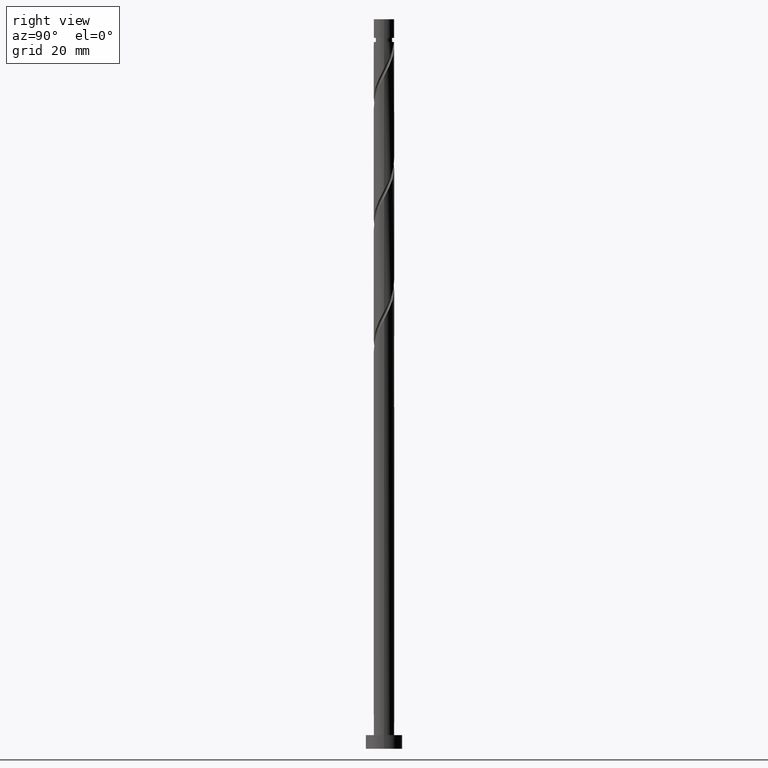
[diagram: clean part render]
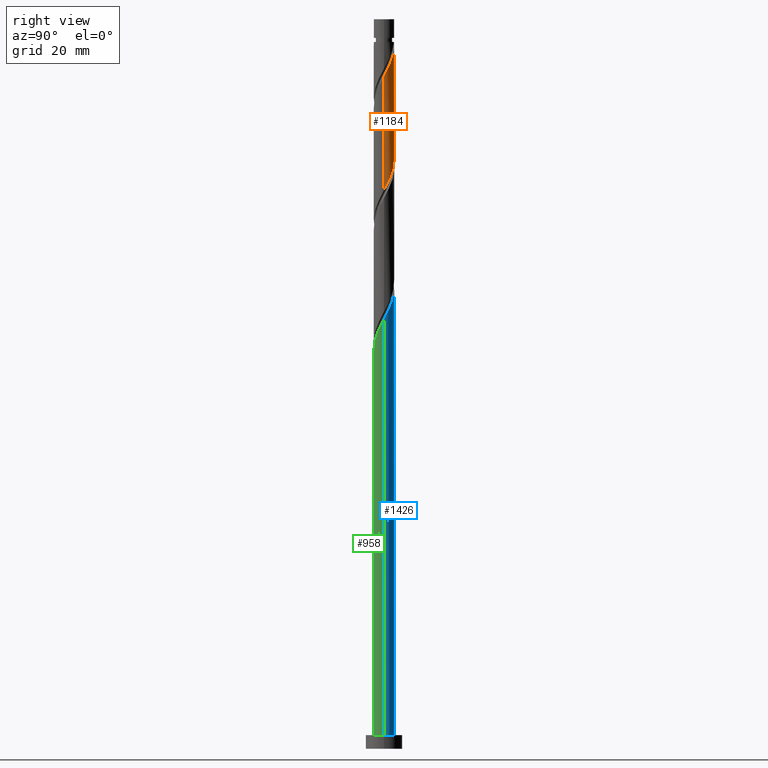
[diagram: same view with three faces highlighted in distinct colors, each labeled with its STEP entity id]
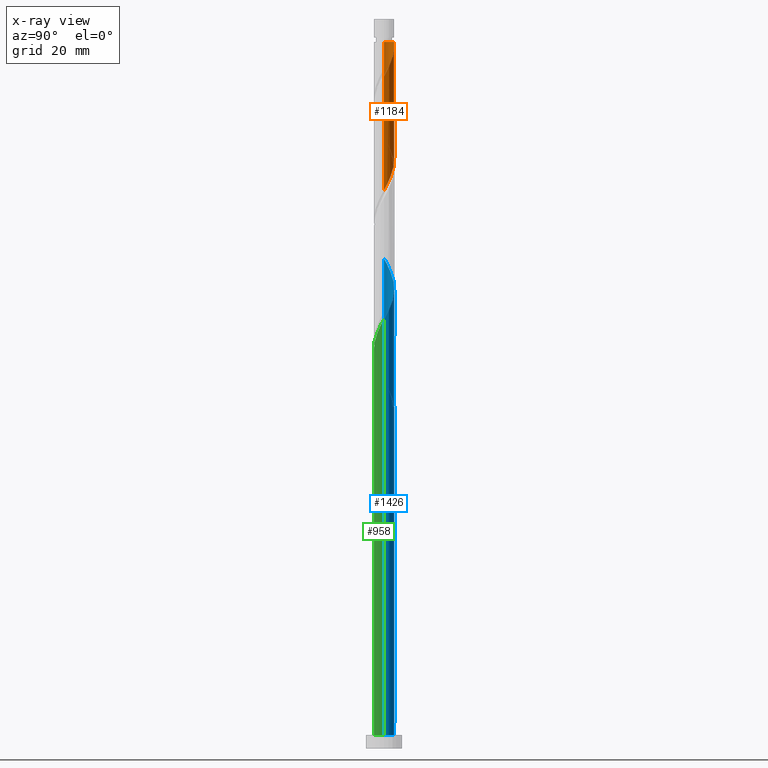
[diagram: x-ray of the same camera — body ghosted, the three highlighted faces saturated]
A machine part, right view with three faces highlighted in distinct colors.
The next image is the same camera in x-ray (body ghosted, the three faces saturated) — at least one of them is partly hidden behind the body in this view.
Their STEP definitions:

[orange] entity #1184 — the highlighted cylindrical surface (edge-blend (fillet) strip) has radius 2.25 mm, axis along (-0, -0, -1).
#33 = CARTESIAN_POINT ( 'NONE',  ( 0.1916127332030282959, 2.241826166426486910, 153.7974561491446366 ) ) ;
#46 = CARTESIAN_POINT ( 'NONE',  ( -0.1307132084390629223, 2.269375918314132434, 154.4035167552052883 ) ) ;
#47 = CARTESIAN_POINT ( 'NONE',  ( -2.249999999999998668, 0.06474493467861150431, 135.7369338358485606 ) ) ;
#56 = CARTESIAN_POINT ( 'NONE',  ( 1.050827842467677575, 1.989537847213448618, 127.1307894824780647 ) ) ;
#65 = CYLINDRICAL_SURFACE ( 'NONE', #1033, 2.250000000000000000 ) ;
#80 = AXIS2_PLACEMENT_3D ( 'NONE', #606, #1105, #1547 ) ;
#86 = CARTESIAN_POINT ( 'NONE',  ( -1.373217619952648239, 1.782350517785876720, 131.9792743309628804 ) ) ;
#96 = CARTESIAN_POINT ( 'NONE',  ( -0.5139386748451184594, 2.214276414538838278, 130.1610925127810958 ) ) ;
#105 = CARTESIAN_POINT ( 'NONE',  ( 0.7647754849568960678, 2.140624081685869928, 127.7368500885386311 ) ) ;
#115 = CARTESIAN_POINT ( 'NONE',  ( 2.250000000000003109, 1.720034380902071385E-15, 147.4934562152983801 ) ) ;
#151 = ORIENTED_EDGE ( 'NONE', *, *, #1161, .F. ) ;
#153 = CARTESIAN_POINT ( 'NONE',  ( 1.629480936700962834, 1.584911631105248686, 150.7671531188416338 ) ) ;
#199 = CARTESIAN_POINT ( 'NONE',  ( 2.249999999999999112, 0.2576900866165303672, 123.0116584602047709 ) ) ;
#201 = EDGE_CURVE ( 'NONE', #1277, #380, #1053, .T. ) ;
#210 = CARTESIAN_POINT ( 'NONE',  ( -2.249999999999992450, 0.000000000000000000, 155.0095773612659116 ) ) ;
#243 = CARTESIAN_POINT ( 'NONE',  ( -1.116954303204337640, 1.979789404466506308, 131.3732137249022855 ) ) ;
#294 = CARTESIAN_POINT ( 'NONE',  ( 2.191738273361774958, 0.5087075201735702379, 123.4944258461144102 ) ) ;
#307 = DIRECTION ( 'NONE',  ( -0.000000000000000000, -0.000000000000000000, -1.000000000000000000 ) ) ;
#316 = CARTESIAN_POINT ( 'NONE',  ( 2.118597173968805869, 0.8238319100010139673, 124.1004864521749909 ) ) ;
#343 = ORIENTED_EDGE ( 'NONE', *, *, #980, .T. ) ;
#349 = EDGE_CURVE ( 'NONE', #1119, #1326, #1545, .T. ) ;
#380 = VERTEX_POINT ( 'NONE', #1336 ) ;
#421 = CARTESIAN_POINT ( 'NONE',  ( 2.009996715602345496, 1.061633743224249082, 149.5550319067204157 ) ) ;
#434 = VECTOR ( 'NONE', #1430, 1000.000000000000000 ) ;
#443 = CARTESIAN_POINT ( 'NONE',  ( -2.227674514516368554, 0.4523486032462000761, 135.0095773612659116 ) ) ;
#471 = CARTESIAN_POINT ( 'NONE',  ( -1.819738826151650279, 1.323272687164748218, 133.1913955430840986 ) ) ;
#475 = ORIENTED_EDGE ( 'NONE', *, *, #906, .T. ) ;
#501 = CARTESIAN_POINT ( 'NONE',  ( 2.118835615059359689, 0.7569911732352244682, 148.9489713006598777 ) ) ;
#514 = LINE ( 'NONE', #681, #434 ) ;
#553 = ORIENTED_EDGE ( 'NONE', *, *, #349, .F. ) ;
#580 = DIRECTION ( 'NONE',  ( -0.000000000000000000, -0.000000000000000000, -1.000000000000000000 ) ) ;
#602 =( BOUNDED_CURVE ( )  B_SPLINE_CURVE ( 2, ( #1198, #47, #1581, #443, #1345, #1613, #471, #974, #86, #243, #1242, #96, #1248, #1212, #1381, #105, #56, #719, #1342, #954, #947, #316, #294, #199, #826 ),
 .UNSPECIFIED., .F., .T. ) 
 B_SPLINE_CURVE_WITH_KNOTS ( ( 3, 2, 2, 2, 2, 2, 2, 2, 2, 2, 2, 2, 3 ),
 ( 0.4295252162417517172, 0.4318181818181818232, 0.4431818181818181768, 0.4545454545454545303, 0.4659090909090908839, 0.4772727272727272929, 0.4886363636363636465, 0.5000000000000000000, 0.5113636363636363535, 0.5227272727272727071, 0.5340909090909090606, 0.5454545454545454142, 0.5545252162417511066 ),
 .UNSPECIFIED. ) 
 CURVE ( )  GEOMETRIC_REPRESENTATION_ITEM ( )  RATIONAL_B_SPLINE_CURVE ( ( 0.9061101570135632333, 0.9072237824201453416, 0.9090909090909224943, 0.8998376744372248437, 0.9090909090909224943, 0.8998376744372248437, 0.9090909090909224943, 0.8998376744372248437, 0.9090909090909224943, 0.8998376744372248437, 0.9090909090909224943, 0.8998376744372248437, 0.9090909090909224943, 0.8998376744372248437, 0.9090909090909224943, 0.8998376744372248437, 0.9090909090909224943, 0.8998376744372248437, 0.9090909090909224943, 0.8998376744372248437, 0.9090909090909224943, 0.8998376744372248437, 0.9090909090909224943, 0.9017048011080024406, 0.9061101570135627892 ) ) 
 REPRESENTATION_ITEM ( '' )  );
#606 = CARTESIAN_POINT ( 'NONE',  ( 0.000000000000000000, 0.000000000000000000, 155.0095773612659116 ) ) ;
#629 = CARTESIAN_POINT ( 'NONE',  ( 2.250000000000003109, 0.06474493467859572526, 147.6155542200165769 ) ) ;
#666 = CARTESIAN_POINT ( 'NONE',  ( 0.8154464890247291597, 2.097032909502675846, 152.5853349370235605 ) ) ;
#681 = CARTESIAN_POINT ( 'NONE',  ( 2.250000000000000000, 2.755455298081544285E-16, 160.0000000000000000 ) ) ;
#689 = CARTESIAN_POINT ( 'NONE',  ( 1.116954303204339416, 1.979789404466509417, 151.9792743309629088 ) ) ;
#699 = CARTESIAN_POINT ( 'NONE',  ( 1.819738826151654054, 1.323272687164749328, 150.1610925127810674 ) ) ;
#705 = VERTEX_POINT ( 'NONE', #733 ) ;
#719 = CARTESIAN_POINT ( 'NONE',  ( 1.336880199978459194, 1.838451612741027974, 126.5247288764174414 ) ) ;
#733 = CARTESIAN_POINT ( 'NONE',  ( 2.250000000000000000, 3.380241478990181135E-15, 122.5256985072334999 ) ) ;
#739 = EDGE_LOOP ( 'NONE', ( #1334, #343, #151, #553, #475 ) ) ;
#785 = CARTESIAN_POINT ( 'NONE',  ( -2.250000000000000000, 1.189067245927961296E-14, 135.8590318405667858 ) ) ;
#810 = CARTESIAN_POINT ( 'NONE',  ( 0.000000000000000000, 0.000000000000000000, 160.0000000000000000 ) ) ;
#811 = CARTESIAN_POINT ( 'NONE',  ( -0.4477443466979481590, 2.205000000000004512, 155.0095773612658263 ) ) ;
#826 = CARTESIAN_POINT ( 'NONE',  ( 2.250000000000000000, 3.380241478990181135E-15, 122.5256985072334999 ) ) ;
#835 = VECTOR ( 'NONE', #307, 1000.000000000000000 ) ;
#906 = EDGE_CURVE ( 'NONE', #1119, #380, #1348, .T. ) ;
#947 = CARTESIAN_POINT ( 'NONE',  ( 1.959638002949630309, 1.105585318912829962, 124.7065470582355999 ) ) ;
#954 = CARTESIAN_POINT ( 'NONE',  ( 1.800678831930455193, 1.387338727824644513, 125.3126076642962232 ) ) ;
#974 = CARTESIAN_POINT ( 'NONE',  ( -1.629480936700959059, 1.584911631105248020, 132.5853349370234753 ) ) ;
#980 = EDGE_CURVE ( 'NONE', #1277, #705, #514, .T. ) ;
#1033 = AXIS2_PLACEMENT_3D ( 'NONE', #810, #580, #1081 ) ;
#1053 =( BOUNDED_CURVE ( )  B_SPLINE_CURVE ( 2, ( #115, #629, #1129, #1644, #501, #421, #699, #153, #1197, #689, #666, #1169, #33, #46, #811 ),
 .UNSPECIFIED., .F., .T. ) 
 B_SPLINE_CURVE_WITH_KNOTS ( ( 3, 2, 2, 2, 2, 2, 2, 3 ),
 ( 0.6795252162417512176, 0.6818181818181818787, 0.6931818181818181213, 0.7045454545454545858, 0.7159090909090908283, 0.7272727272727272929, 0.7386363636363636465, 0.7500000000000000000 ),
 .UNSPECIFIED. ) 
 CURVE ( )  GEOMETRIC_REPRESENTATION_ITEM ( )  RATIONAL_B_SPLINE_CURVE ( ( 0.9061101570135687844, 0.9072237824201510037, 0.9090909090909286006, 0.8998376744372309499, 0.9090909090909286006, 0.8998376744372309499, 0.9090909090909286006, 0.8998376744372309499, 0.9090909090909286006, 0.8998376744372309499, 0.9090909090909286006, 0.8998376744372309499, 0.9090909090909286006, 0.8998376744372309499, 0.9090909090909286006 ) ) 
 REPRESENTATION_ITEM ( '' )  );
#1081 = DIRECTION ( 'NONE',  ( -1.000000000000000000, 0.000000000000000000, 0.000000000000000000 ) ) ;
#1105 = DIRECTION ( 'NONE',  ( -0.000000000000000000, -0.000000000000000000, -1.000000000000000000 ) ) ;
#1119 = VERTEX_POINT ( 'NONE', #210 ) ;
#1129 = CARTESIAN_POINT ( 'NONE',  ( 2.246276943635560741, 0.1293827364500363397, 147.7368500885386879 ) ) ;
#1161 = EDGE_CURVE ( 'NONE', #1326, #705, #602, .T. ) ;
#1169 = CARTESIAN_POINT ( 'NONE',  ( 0.5139386748451196807, 2.214276414538841831, 153.1913955430841270 ) ) ;
#1184 = ADVANCED_FACE ( 'NONE', ( #1217 ), #65, .T. ) ;
#1188 = CARTESIAN_POINT ( 'NONE',  ( -2.250000000000000000, 0.000000000000000000, 160.0000000000000000 ) ) ;
#1197 = CARTESIAN_POINT ( 'NONE',  ( 1.373217619952650237, 1.782350517785879829, 151.3732137249022855 ) ) ;
#1198 = CARTESIAN_POINT ( 'NONE',  ( -2.250000000000000000, 1.189067245927961296E-14, 135.8590318405667858 ) ) ;
#1212 = CARTESIAN_POINT ( 'NONE',  ( 0.1307132084390634219, 2.269375918314128882, 128.9489713006598492 ) ) ;
#1217 = FACE_OUTER_BOUND ( 'NONE', #739, .T. ) ;
#1242 = CARTESIAN_POINT ( 'NONE',  ( -0.8154464890247279385, 2.097032909502672737, 130.7671531188416907 ) ) ;
#1248 = CARTESIAN_POINT ( 'NONE',  ( -0.1916127332030274633, 2.241826166426483358, 129.5550319067204725 ) ) ;
#1277 = VERTEX_POINT ( 'NONE', #1435 ) ;
#1326 = VERTEX_POINT ( 'NONE', #785 ) ;
#1334 = ORIENTED_EDGE ( 'NONE', *, *, #201, .F. ) ;
#1336 = CARTESIAN_POINT ( 'NONE',  ( -0.4477443466979481590, 2.205000000000004068, 155.0095773612658263 ) ) ;
#1342 = CARTESIAN_POINT ( 'NONE',  ( 1.568779515954456860, 1.612895170282836466, 125.9186682703568323 ) ) ;
#1345 = CARTESIAN_POINT ( 'NONE',  ( -2.118835615059355693, 0.7569911732352241351, 134.4035167552053451 ) ) ;
#1348 = CIRCLE ( 'NONE', #80, 2.249999999999992450 ) ;
#1381 = CARTESIAN_POINT ( 'NONE',  ( 0.4477443466979801334, 2.204999999999999183, 128.3429106945992544 ) ) ;
#1430 = DIRECTION ( 'NONE',  ( -0.000000000000000000, -0.000000000000000000, -1.000000000000000000 ) ) ;
#1435 = CARTESIAN_POINT ( 'NONE',  ( 2.250000000000003109, 1.720034380902071385E-15, 147.4934562152983801 ) ) ;
#1545 = LINE ( 'NONE', #1188, #835 ) ;
#1547 = DIRECTION ( 'NONE',  ( -1.000000000000000000, 0.000000000000000000, 0.000000000000000000 ) ) ;
#1581 = CARTESIAN_POINT ( 'NONE',  ( -2.246276943635557188, 0.1293827364500370891, 135.6156379673265633 ) ) ;
#1613 = CARTESIAN_POINT ( 'NONE',  ( -2.009996715602341943, 1.061633743224248638, 133.7974561491446650 ) ) ;
#1644 = CARTESIAN_POINT ( 'NONE',  ( 2.227674514516372550, 0.4523486032461998541, 148.3429106945992544 ) ) ;

[blue] entity #1426 — the highlighted cylindrical surface (edge-blend (fillet) strip) has radius 2.25 mm, axis along (-0, -0, -1).
#9 = EDGE_CURVE ( 'NONE', #1291, #1311, #374, .T. ) ;
#11 = CARTESIAN_POINT ( 'NONE',  ( -1.629480936700959059, 1.584911631105248020, 79.25200160369014668 ) ) ;
#14 = CARTESIAN_POINT ( 'NONE',  ( 2.118835615059359689, 0.7569911732352244682, 95.61563796732653486 ) ) ;
#20 = CARTESIAN_POINT ( 'NONE',  ( 0.1307132084390634219, 2.269375918314128882, 75.61563796732650644 ) ) ;
#51 = DIRECTION ( 'NONE',  ( -1.000000000000000000, 0.000000000000000000, 0.000000000000000000 ) ) ;
#64 = CARTESIAN_POINT ( 'NONE',  ( -1.568779515954459081, 1.612895170282839130, 104.1004864521750193 ) ) ;
#85 = ORIENTED_EDGE ( 'NONE', *, *, #1290, .T. ) ;
#117 = CARTESIAN_POINT ( 'NONE',  ( -1.373217619952648239, 1.782350517785876720, 78.64594099762953761 ) ) ;
#146 = CARTESIAN_POINT ( 'NONE',  ( -2.118835615059355693, 0.7569911732352241351, 81.07018342187197391 ) ) ;
#181 = CARTESIAN_POINT ( 'NONE',  ( 0.000000000000000000, 0.000000000000000000, 160.0000000000000000 ) ) ;
#185 = CARTESIAN_POINT ( 'NONE',  ( -2.249999999999999556, 8.742261701193629257E-15, 82.52569850723344302 ) ) ;
#198 = CARTESIAN_POINT ( 'NONE',  ( -0.1307132084390629223, 2.269375918314132434, 101.0701834218719881 ) ) ;
#205 = DIRECTION ( 'NONE',  ( -0.000000000000000000, -0.000000000000000000, -1.000000000000000000 ) ) ;
#214 = AXIS2_PLACEMENT_3D ( 'NONE', #181, #702, #51 ) ;
#224 = LINE ( 'NONE', #1630, #296 ) ;
#236 = CARTESIAN_POINT ( 'NONE',  ( -0.7647754849568966229, 2.140624081685873925, 75.61563796732652065 ) ) ;
#273 = CARTESIAN_POINT ( 'NONE',  ( 2.250000000000003109, 1.720034380902071385E-15, 94.16012288196502311 ) ) ;
#277 = CARTESIAN_POINT ( 'NONE',  ( -0.8154464890247279385, 2.097032909502672737, 77.43381978550834788 ) ) ;
#282 = CARTESIAN_POINT ( 'NONE',  ( 2.227674514516372550, 0.4523486032461998541, 95.00957736126588316 ) ) ;
#287 = ORIENTED_EDGE ( 'NONE', *, *, #1497, .F. ) ;
#292 = VERTEX_POINT ( 'NONE', #1555 ) ;
#296 = VECTOR ( 'NONE', #1310, 1000.000000000000000 ) ;
#310 = CYLINDRICAL_SURFACE ( 'NONE', #214, 2.250000000000000000 ) ;
#326 = CARTESIAN_POINT ( 'NONE',  ( -1.050827842467678686, 1.989537847213452171, 102.8883652400537727 ) ) ;
#340 = LINE ( 'NONE', #1597, #352 ) ;
#345 = CARTESIAN_POINT ( 'NONE',  ( -2.250000000000005773, 0.2576900866165175996, 80.34082959566040927 ) ) ;
#352 = VECTOR ( 'NONE', #963, 1000.000000000000000 ) ;
#374 =( BOUNDED_CURVE ( )  B_SPLINE_CURVE ( 2, ( #273, #1177, #796, #282, #14, #407, #924, #918, #1423, #803, #676, #539, #1350, #198, #1216, #1465, #326, #718, #64, #579, #1080, #450, #832, #953, #1018 ),
 .UNSPECIFIED., .F., .T. ) 
 B_SPLINE_CURVE_WITH_KNOTS ( ( 3, 2, 2, 2, 2, 2, 2, 2, 2, 2, 2, 2, 3 ),
 ( 0.1795252162417515229, 0.1818181818181817677, 0.1931818181818182323, 0.2045454545454545858, 0.2159090909090909394, 0.2272727272727272929, 0.2386363636363636465, 0.2500000000000000000, 0.2613636363636363535, 0.2727272727272727071, 0.2840909090909090606, 0.2954545454545454142, 0.3045252162417512731 ),
 .UNSPECIFIED. ) 
 CURVE ( )  GEOMETRIC_REPRESENTATION_ITEM ( )  RATIONAL_B_SPLINE_CURVE ( ( 0.9061101570135692285, 0.9072237824201513368, 0.9090909090909286006, 0.8998376744372309499, 0.9090909090909286006, 0.8998376744372309499, 0.9090909090909286006, 0.8998376744372309499, 0.9090909090909286006, 0.8998376744372309499, 0.9090909090909286006, 0.8998376744372309499, 0.9090909090909286006, 0.8998376744372309499, 0.9090909090909286006, 0.8998376744372309499, 0.9090909090909286006, 0.8998376744372309499, 0.9090909090909286006, 0.8998376744372309499, 0.9090909090909286006, 0.8998376744372309499, 0.9090909090909286006, 0.9017048011080084358, 0.9061101570135690064 ) ) 
 REPRESENTATION_ITEM ( '' )  );
#381 = CARTESIAN_POINT ( 'NONE',  ( 2.250000000000000000, 2.755455298081544285E-16, 3.000000000000000000 ) ) ;
#393 = CARTESIAN_POINT ( 'NONE',  ( -2.246276943635557188, 0.1293827364500370891, 82.28230463399320627 ) ) ;
#407 = CARTESIAN_POINT ( 'NONE',  ( 2.009996715602345496, 1.061633743224249082, 96.22169857338714394 ) ) ;
#418 =( BOUNDED_CURVE ( )  B_SPLINE_CURVE ( 2, ( #729, #236, #1225, #1106, #755, #1374, #1483, #1114, #1243, #345, #485 ),
 .UNSPECIFIED., .F., .T. ) 
 B_SPLINE_CURVE_WITH_KNOTS ( ( 3, 2, 2, 2, 2, 3 ),
 ( 0.000000000000000000, 0.01136363636363635354, 0.02272727272727270709, 0.03409090909090906063, 0.04545454545454541417, 0.05452521624175162701 ),
 .UNSPECIFIED. ) 
 CURVE ( )  GEOMETRIC_REPRESENTATION_ITEM ( )  RATIONAL_B_SPLINE_CURVE ( ( 0.9090909090909286006, 0.8998376744372309499, 0.9090909090909286006, 0.8998376744372309499, 0.9090909090909286006, 0.8998376744372309499, 0.9090909090909286006, 0.8998376744372309499, 0.9090909090909286006, 0.9017048011080082137, 0.9061101570135693395 ) ) 
 REPRESENTATION_ITEM ( '' )  );
#431 = CARTESIAN_POINT ( 'NONE',  ( 2.250000000000003109, 1.720034380902071385E-15, 94.16012288196502311 ) ) ;
#450 = CARTESIAN_POINT ( 'NONE',  ( -2.118597173968808978, 0.8238319100010174090, 105.9186682703568323 ) ) ;
#485 = CARTESIAN_POINT ( 'NONE',  ( -2.250000000000003109, -1.809775305123048942E-15, 80.82678954863172294 ) ) ;
#539 = CARTESIAN_POINT ( 'NONE',  ( 0.5139386748451196807, 2.214276414538841831, 99.85806220975076997 ) ) ;
#550 = DIRECTION ( 'NONE',  ( 0.000000000000000000, -0.000000000000000000, -1.000000000000000000 ) ) ;
#579 = CARTESIAN_POINT ( 'NONE',  ( -1.800678831930457857, 1.387338727824646289, 104.7065470582356284 ) ) ;
#593 = DIRECTION ( 'NONE',  ( 0.000000000000000000, 0.000000000000000000, 1.000000000000000000 ) ) ;
#596 = EDGE_CURVE ( 'NONE', #1633, #1580, #1410, .T. ) ;
#605 = VERTEX_POINT ( 'NONE', #1511 ) ;
#661 = CARTESIAN_POINT ( 'NONE',  ( -0.5139386748451184594, 2.214276414538838278, 76.82775917944772459 ) ) ;
#664 = EDGE_LOOP ( 'NONE', ( #1148, #1102, #862, #667, #1433, #85, #287, #1185 ) ) ;
#667 = ORIENTED_EDGE ( 'NONE', *, *, #1235, .F. ) ;
#676 = CARTESIAN_POINT ( 'NONE',  ( 0.8154464890247291597, 2.097032909502675846, 99.25200160369018931 ) ) ;
#684 = EDGE_CURVE ( 'NONE', #292, #786, #418, .T. ) ;
#702 = DIRECTION ( 'NONE',  ( -0.000000000000000000, -0.000000000000000000, -1.000000000000000000 ) ) ;
#718 = CARTESIAN_POINT ( 'NONE',  ( -1.336880199978460970, 1.838451612741030861, 103.4944258461144102 ) ) ;
#729 = CARTESIAN_POINT ( 'NONE',  ( -0.4477443466979794118, 2.205000000000003180, 75.00957736126591158 ) ) ;
#755 = CARTESIAN_POINT ( 'NONE',  ( -1.568779515954459081, 1.612895170282839130, 77.43381978550830524 ) ) ;
#779 =( BOUNDED_CURVE ( )  B_SPLINE_CURVE ( 2, ( #185, #1306, #393, #1005, #146, #902, #883, #11, #117, #792, #277, #661, #1297, #20, #1559 ),
 .UNSPECIFIED., .F., .T. ) 
 B_SPLINE_CURVE_WITH_KNOTS ( ( 3, 2, 2, 2, 2, 2, 2, 3 ),
 ( 0.9295252162417516617, 0.9318181818181817677, 0.9431818181818182323, 0.9545454545454545858, 0.9659090909090909394, 0.9772727272727272929, 0.9886363636363636465, 1.000000000000000000 ),
 .UNSPECIFIED. ) 
 CURVE ( )  GEOMETRIC_REPRESENTATION_ITEM ( )  RATIONAL_B_SPLINE_CURVE ( ( 0.9061101570135632333, 0.9072237824201453416, 0.9090909090909224943, 0.8998376744372248437, 0.9090909090909224943, 0.8998376744372248437, 0.9090909090909224943, 0.8998376744372248437, 0.9090909090909224943, 0.8998376744372248437, 0.9090909090909224943, 0.8998376744372248437, 0.9090909090909224943, 0.8998376744372248437, 0.9090909090909224943 ) ) 
 REPRESENTATION_ITEM ( '' )  );
#786 = VERTEX_POINT ( 'NONE', #893 ) ;
#792 = CARTESIAN_POINT ( 'NONE',  ( -1.116954303204337640, 1.979789404466506308, 78.03988039156894274 ) ) ;
#796 = CARTESIAN_POINT ( 'NONE',  ( 2.246276943635560741, 0.1293827364500363397, 94.40351675520531671 ) ) ;
#803 = CARTESIAN_POINT ( 'NONE',  ( 1.116954303204339416, 1.979789404466509417, 98.64594099762953761 ) ) ;
#832 = CARTESIAN_POINT ( 'NONE',  ( -2.191738273361778067, 0.5087075201735721253, 106.5247288764174272 ) ) ;
#842 = LINE ( 'NONE', #1572, #1003 ) ;
#862 = ORIENTED_EDGE ( 'NONE', *, *, #596, .T. ) ;
#871 = AXIS2_PLACEMENT_3D ( 'NONE', #1324, #550, #1059 ) ;
#883 = CARTESIAN_POINT ( 'NONE',  ( -1.819738826151650279, 1.323272687164748218, 79.85806220975076997 ) ) ;
#893 = CARTESIAN_POINT ( 'NONE',  ( -2.250000000000003109, -1.809775305123048942E-15, 80.82678954863172294 ) ) ;
#902 = CARTESIAN_POINT ( 'NONE',  ( -2.009996715602341943, 1.061633743224248638, 80.46412281581137904 ) ) ;
#918 = CARTESIAN_POINT ( 'NONE',  ( 1.629480936700962834, 1.584911631105248686, 97.43381978550833367 ) ) ;
#924 = CARTESIAN_POINT ( 'NONE',  ( 1.819738826151654054, 1.323272687164749328, 96.82775917944775301 ) ) ;
#935 = CARTESIAN_POINT ( 'NONE',  ( -2.250000000000003109, -1.809775305123048942E-15, 107.4934562152983801 ) ) ;
#953 = CARTESIAN_POINT ( 'NONE',  ( -2.250000000000003109, 0.2576900866165275361, 107.0074962623270522 ) ) ;
#963 = DIRECTION ( 'NONE',  ( -0.000000000000000000, -0.000000000000000000, -1.000000000000000000 ) ) ;
#1003 = VECTOR ( 'NONE', #205, 1000.000000000000000 ) ;
#1005 = CARTESIAN_POINT ( 'NONE',  ( -2.227674514516368554, 0.4523486032462000761, 81.67624402793261140 ) ) ;
#1018 = CARTESIAN_POINT ( 'NONE',  ( -2.250000000000003109, -1.809775305123048942E-15, 107.4934562152983801 ) ) ;
#1059 = DIRECTION ( 'NONE',  ( -1.000000000000000000, 0.000000000000000000, 0.000000000000000000 ) ) ;
#1060 = CARTESIAN_POINT ( 'NONE',  ( -2.249999999999999556, 8.742261701193629257E-15, 82.52569850723344302 ) ) ;
#1080 = CARTESIAN_POINT ( 'NONE',  ( -1.959638002949633639, 1.105585318912831738, 105.3126076642962374 ) ) ;
#1102 = ORIENTED_EDGE ( 'NONE', *, *, #1103, .T. ) ;
#1103 = EDGE_CURVE ( 'NONE', #1291, #1633, #340, .T. ) ;
#1106 = CARTESIAN_POINT ( 'NONE',  ( -1.336880199978460970, 1.838451612741030861, 76.82775917944772459 ) ) ;
#1112 = AXIS2_PLACEMENT_3D ( 'NONE', #1619, #593, #1626 ) ;
#1114 = CARTESIAN_POINT ( 'NONE',  ( -2.118597173968808978, 0.8238319100010174090, 79.25200160369017510 ) ) ;
#1140 = VERTEX_POINT ( 'NONE', #1060 ) ;
#1148 = ORIENTED_EDGE ( 'NONE', *, *, #9, .F. ) ;
#1177 = CARTESIAN_POINT ( 'NONE',  ( 2.250000000000003553, 0.06474493467860686913, 94.28222088668326251 ) ) ;
#1185 = ORIENTED_EDGE ( 'NONE', *, *, #1314, .F. ) ;
#1216 = CARTESIAN_POINT ( 'NONE',  ( -0.4477443466979793563, 2.205000000000003180, 101.6762440279325688 ) ) ;
#1225 = CARTESIAN_POINT ( 'NONE',  ( -1.050827842467678686, 1.989537847213452171, 76.22169857338714394 ) ) ;
#1235 = EDGE_CURVE ( 'NONE', #786, #1580, #842, .T. ) ;
#1243 = CARTESIAN_POINT ( 'NONE',  ( -2.191738273361778067, 0.5087075201735721253, 79.85806220975078418 ) ) ;
#1290 = EDGE_CURVE ( 'NONE', #292, #605, #1603, .T. ) ;
#1291 = VERTEX_POINT ( 'NONE', #431 ) ;
#1297 = CARTESIAN_POINT ( 'NONE',  ( -0.1916127332030274633, 2.241826166426483358, 76.22169857338714394 ) ) ;
#1306 = CARTESIAN_POINT ( 'NONE',  ( -2.249999999999998668, 0.06474493467861150431, 82.40360050251523205 ) ) ;
#1310 = DIRECTION ( 'NONE',  ( -0.000000000000000000, -0.000000000000000000, -1.000000000000000000 ) ) ;
#1311 = VERTEX_POINT ( 'NONE', #935 ) ;
#1314 = EDGE_CURVE ( 'NONE', #1311, #1140, #224, .T. ) ;
#1324 = CARTESIAN_POINT ( 'NONE',  ( 0.000000000000000000, 0.000000000000000000, 75.00957736126591158 ) ) ;
#1350 = CARTESIAN_POINT ( 'NONE',  ( 0.1916127332030282959, 2.241826166426486910, 100.4641228158113790 ) ) ;
#1354 = CARTESIAN_POINT ( 'NONE',  ( -2.250000000000000000, 0.000000000000000000, 3.000000000000000000 ) ) ;
#1374 = CARTESIAN_POINT ( 'NONE',  ( -1.800678831930457857, 1.387338727824646289, 78.03988039156894274 ) ) ;
#1410 = CIRCLE ( 'NONE', #1112, 2.250000000000000000 ) ;
#1423 = CARTESIAN_POINT ( 'NONE',  ( 1.373217619952650237, 1.782350517785879829, 98.03988039156894274 ) ) ;
#1426 = ADVANCED_FACE ( 'NONE', ( #1442 ), #310, .T. ) ;
#1433 = ORIENTED_EDGE ( 'NONE', *, *, #684, .F. ) ;
#1442 = FACE_OUTER_BOUND ( 'NONE', #664, .T. ) ;
#1465 = CARTESIAN_POINT ( 'NONE',  ( -0.7647754849568966229, 2.140624081685873925, 102.2823046339931778 ) ) ;
#1483 = CARTESIAN_POINT ( 'NONE',  ( -1.959638002949633639, 1.105585318912831738, 78.64594099762956603 ) ) ;
#1497 = EDGE_CURVE ( 'NONE', #1140, #605, #779, .T. ) ;
#1511 = CARTESIAN_POINT ( 'NONE',  ( 0.4477443466979800779, 2.204999999999999183, 75.00957736126591158 ) ) ;
#1555 = CARTESIAN_POINT ( 'NONE',  ( -0.4477443466979794118, 2.205000000000003180, 75.00957736126591158 ) ) ;
#1559 = CARTESIAN_POINT ( 'NONE',  ( 0.4477443466979800779, 2.204999999999999183, 75.00957736126591158 ) ) ;
#1572 = CARTESIAN_POINT ( 'NONE',  ( -2.250000000000000000, 0.000000000000000000, 160.0000000000000000 ) ) ;
#1580 = VERTEX_POINT ( 'NONE', #1354 ) ;
#1597 = CARTESIAN_POINT ( 'NONE',  ( 2.250000000000000000, 2.755455298081544285E-16, 160.0000000000000000 ) ) ;
#1603 = CIRCLE ( 'NONE', #871, 2.250000000000000000 ) ;
#1619 = CARTESIAN_POINT ( 'NONE',  ( 0.000000000000000000, 0.000000000000000000, 3.000000000000000000 ) ) ;
#1626 = DIRECTION ( 'NONE',  ( 1.000000000000000000, 0.000000000000000000, 0.000000000000000000 ) ) ;
#1630 = CARTESIAN_POINT ( 'NONE',  ( -2.250000000000000000, 0.000000000000000000, 160.0000000000000000 ) ) ;
#1633 = VERTEX_POINT ( 'NONE', #381 ) ;

[green] entity #958 — the highlighted cylindrical surface (edge-blend (fillet) strip) has radius 2.25 mm, axis along (-0, -0, -1).
#24 = CARTESIAN_POINT ( 'NONE',  ( 0.7647754849568961788, -2.140624081685874369, 88.94897130065986346 ) ) ;
#95 = EDGE_CURVE ( 'NONE', #1580, #1633, #853, .T. ) ;
#155 = DIRECTION ( 'NONE',  ( -0.000000000000000000, -0.000000000000000000, -1.000000000000000000 ) ) ;
#162 = CARTESIAN_POINT ( 'NONE',  ( 1.050827842467678241, -1.989537847213453059, 89.55503190672047253 ) ) ;
#164 = DIRECTION ( 'NONE',  ( -1.000000000000000000, 0.000000000000000000, 0.000000000000000000 ) ) ;
#205 = DIRECTION ( 'NONE',  ( -0.000000000000000000, -0.000000000000000000, -1.000000000000000000 ) ) ;
#274 = CARTESIAN_POINT ( 'NONE',  ( -2.118835615059359689, -0.7569911732352245792, 82.28230463399319206 ) ) ;
#285 = CARTESIAN_POINT ( 'NONE',  ( 0.4477443466979796338, -2.205000000000003180, 88.34291069459926860 ) ) ;
#295 = CARTESIAN_POINT ( 'NONE',  ( 2.250000000000003109, 1.720034380902071385E-15, 94.16012288196502311 ) ) ;
#317 = CARTESIAN_POINT ( 'NONE',  ( 1.336880199978460970, -1.838451612741030861, 90.16109251278109582 ) ) ;
#325 = EDGE_CURVE ( 'NONE', #786, #1291, #1029, .T. ) ;
#340 = LINE ( 'NONE', #1597, #352 ) ;
#352 = VECTOR ( 'NONE', #963, 1000.000000000000000 ) ;
#381 = CARTESIAN_POINT ( 'NONE',  ( 2.250000000000000000, 2.755455298081544285E-16, 3.000000000000000000 ) ) ;
#383 = CARTESIAN_POINT ( 'NONE',  ( 0.000000000000000000, 0.000000000000000000, 160.0000000000000000 ) ) ;
#408 = CARTESIAN_POINT ( 'NONE',  ( -1.629480936700961724, -1.584911631105249796, 84.10048645217501928 ) ) ;
#409 = FACE_OUTER_BOUND ( 'NONE', #1624, .T. ) ;
#431 = CARTESIAN_POINT ( 'NONE',  ( 2.250000000000003109, 1.720034380902071385E-15, 94.16012288196502311 ) ) ;
#432 = CARTESIAN_POINT ( 'NONE',  ( 1.800678831930457635, -1.387338727824646956, 91.37321372490228555 ) ) ;
#442 = CARTESIAN_POINT ( 'NONE',  ( -0.8154464890247302700, -2.097032909502675402, 85.91866827035681808 ) ) ;
#551 = CARTESIAN_POINT ( 'NONE',  ( 0.1307132084390632276, -2.269375918314132434, 87.73685008853865952 ) ) ;
#562 = CARTESIAN_POINT ( 'NONE',  ( -2.250000000000003109, -1.809775305123048942E-15, 80.82678954863172294 ) ) ;
#572 = CARTESIAN_POINT ( 'NONE',  ( 1.959638002949632751, -1.105585318912832182, 91.97927433096290883 ) ) ;
#614 = AXIS2_PLACEMENT_3D ( 'NONE', #1121, #1160, #1001 ) ;
#627 = ORIENTED_EDGE ( 'NONE', *, *, #325, .F. ) ;
#786 = VERTEX_POINT ( 'NONE', #893 ) ;
#804 = CYLINDRICAL_SURFACE ( 'NONE', #933, 2.250000000000000000 ) ;
#842 = LINE ( 'NONE', #1572, #1003 ) ;
#853 = CIRCLE ( 'NONE', #614, 2.250000000000000000 ) ;
#893 = CARTESIAN_POINT ( 'NONE',  ( -2.250000000000003109, -1.809775305123048942E-15, 80.82678954863172294 ) ) ;
#897 = ORIENTED_EDGE ( 'NONE', *, *, #1103, .F. ) ;
#919 = CARTESIAN_POINT ( 'NONE',  ( -1.373217619952650459, -1.782350517785879607, 84.70654705823559993 ) ) ;
#927 = CARTESIAN_POINT ( 'NONE',  ( 2.250000000000005329, -0.2576900866165203197, 93.67416292899373786 ) ) ;
#933 = AXIS2_PLACEMENT_3D ( 'NONE', #383, #155, #164 ) ;
#936 = CARTESIAN_POINT ( 'NONE',  ( -0.1916127332030280739, -2.241826166426486910, 87.13078948247806466 ) ) ;
#958 = ADVANCED_FACE ( 'NONE', ( #409 ), #804, .T. ) ;
#963 = DIRECTION ( 'NONE',  ( -0.000000000000000000, -0.000000000000000000, -1.000000000000000000 ) ) ;
#1001 = DIRECTION ( 'NONE',  ( 1.000000000000000000, 0.000000000000000000, 0.000000000000000000 ) ) ;
#1003 = VECTOR ( 'NONE', #205, 1000.000000000000000 ) ;
#1029 =( BOUNDED_CURVE ( )  B_SPLINE_CURVE ( 2, ( #562, #1417, #1457, #1179, #274, #1573, #1039, #408, #919, #1067, #442, #1427, #936, #551, #285, #24, #162, #317, #1049, #432, #572, #1566, #1438, #927, #295 ),
 .UNSPECIFIED., .F., .T. ) 
 B_SPLINE_CURVE_WITH_KNOTS ( ( 3, 2, 2, 2, 2, 2, 2, 2, 2, 2, 2, 2, 3 ),
 ( 0.05452521624175162701, 0.05681818181818176772, 0.06818181818181823228, 0.07954545454545458583, 0.09090909090909093937, 0.1022727272727272929, 0.1136363636363636465, 0.1250000000000000000, 0.1363636363636363535, 0.1477272727272727071, 0.1590909090909090606, 0.1704545454545454142, 0.1795252162417515229 ),
 .UNSPECIFIED. ) 
 CURVE ( )  GEOMETRIC_REPRESENTATION_ITEM ( )  RATIONAL_B_SPLINE_CURVE ( ( 0.9061101570135693395, 0.9072237824201513368, 0.9090909090909286006, 0.8998376744372309499, 0.9090909090909286006, 0.8998376744372309499, 0.9090909090909286006, 0.8998376744372309499, 0.9090909090909286006, 0.8998376744372309499, 0.9090909090909286006, 0.8998376744372309499, 0.9090909090909286006, 0.8998376744372309499, 0.9090909090909286006, 0.8998376744372309499, 0.9090909090909286006, 0.8998376744372309499, 0.9090909090909286006, 0.8998376744372309499, 0.9090909090909286006, 0.8998376744372309499, 0.9090909090909286006, 0.9017048011080082137, 0.9061101570135692285 ) ) 
 REPRESENTATION_ITEM ( '' )  );
#1039 = CARTESIAN_POINT ( 'NONE',  ( -1.819738826151653388, -1.323272687164749772, 83.49442584611439599 ) ) ;
#1049 = CARTESIAN_POINT ( 'NONE',  ( 1.568779515954459081, -1.612895170282839130, 90.76715311884169068 ) ) ;
#1067 = CARTESIAN_POINT ( 'NONE',  ( -1.116954303204340082, -1.979789404466508973, 85.31260766429623743 ) ) ;
#1103 = EDGE_CURVE ( 'NONE', #1291, #1633, #340, .T. ) ;
#1121 = CARTESIAN_POINT ( 'NONE',  ( 0.000000000000000000, 0.000000000000000000, 3.000000000000000000 ) ) ;
#1160 = DIRECTION ( 'NONE',  ( 0.000000000000000000, 0.000000000000000000, 1.000000000000000000 ) ) ;
#1179 = CARTESIAN_POINT ( 'NONE',  ( -2.227674514516372550, -0.4523486032462000761, 81.67624402793258298 ) ) ;
#1208 = ORIENTED_EDGE ( 'NONE', *, *, #1235, .T. ) ;
#1235 = EDGE_CURVE ( 'NONE', #786, #1580, #842, .T. ) ;
#1291 = VERTEX_POINT ( 'NONE', #431 ) ;
#1354 = CARTESIAN_POINT ( 'NONE',  ( -2.250000000000000000, 0.000000000000000000, 3.000000000000000000 ) ) ;
#1417 = CARTESIAN_POINT ( 'NONE',  ( -2.250000000000002665, -0.06474493467860999163, 80.94888755334996233 ) ) ;
#1427 = CARTESIAN_POINT ( 'NONE',  ( -0.5139386748451193476, -2.214276414538841831, 86.52472887641742716 ) ) ;
#1438 = CARTESIAN_POINT ( 'NONE',  ( 2.191738273361778067, -0.5087075201735720142, 93.19139554308408435 ) ) ;
#1457 = CARTESIAN_POINT ( 'NONE',  ( -2.246276943635560741, -0.1293827364500365895, 81.07018342187200233 ) ) ;
#1564 = ORIENTED_EDGE ( 'NONE', *, *, #95, .T. ) ;
#1566 = CARTESIAN_POINT ( 'NONE',  ( 2.118597173968809422, -0.8238319100010167428, 92.58533493702350370 ) ) ;
#1572 = CARTESIAN_POINT ( 'NONE',  ( -2.250000000000000000, 0.000000000000000000, 160.0000000000000000 ) ) ;
#1573 = CARTESIAN_POINT ( 'NONE',  ( -2.009996715602345052, -1.061633743224249971, 82.88836524005378692 ) ) ;
#1580 = VERTEX_POINT ( 'NONE', #1354 ) ;
#1597 = CARTESIAN_POINT ( 'NONE',  ( 2.250000000000000000, 2.755455298081544285E-16, 160.0000000000000000 ) ) ;
#1624 = EDGE_LOOP ( 'NONE', ( #897, #627, #1208, #1564 ) ) ;
#1633 = VERTEX_POINT ( 'NONE', #381 ) ;